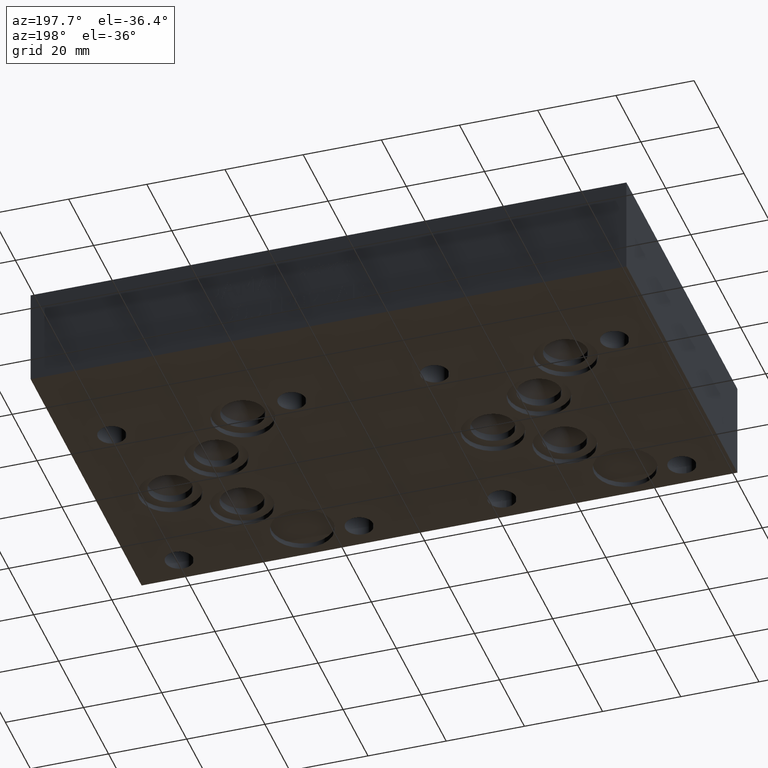
[diagram: clean part render]
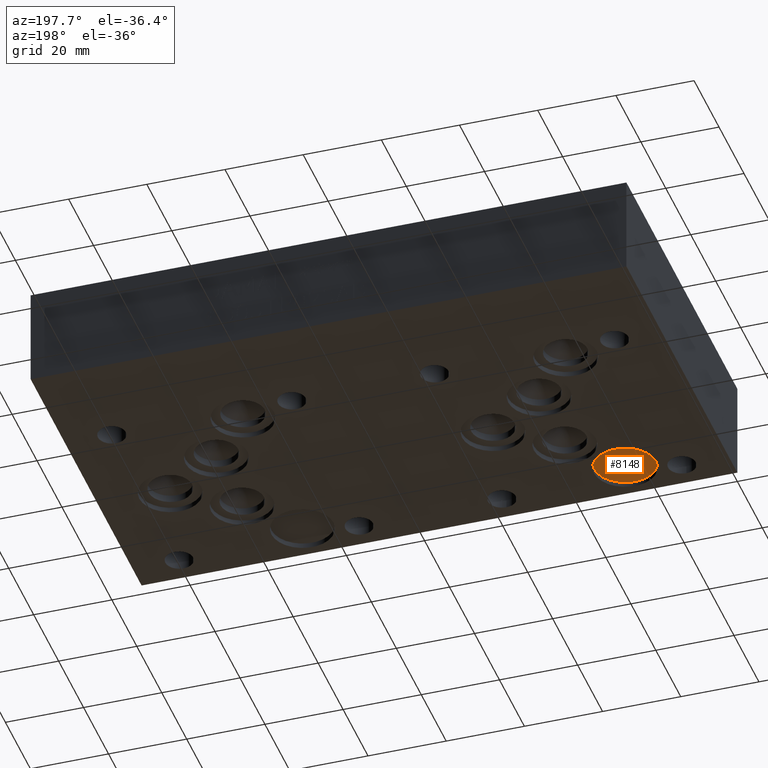
[diagram: same view with one face highlighted and labeled with its STEP entity id]
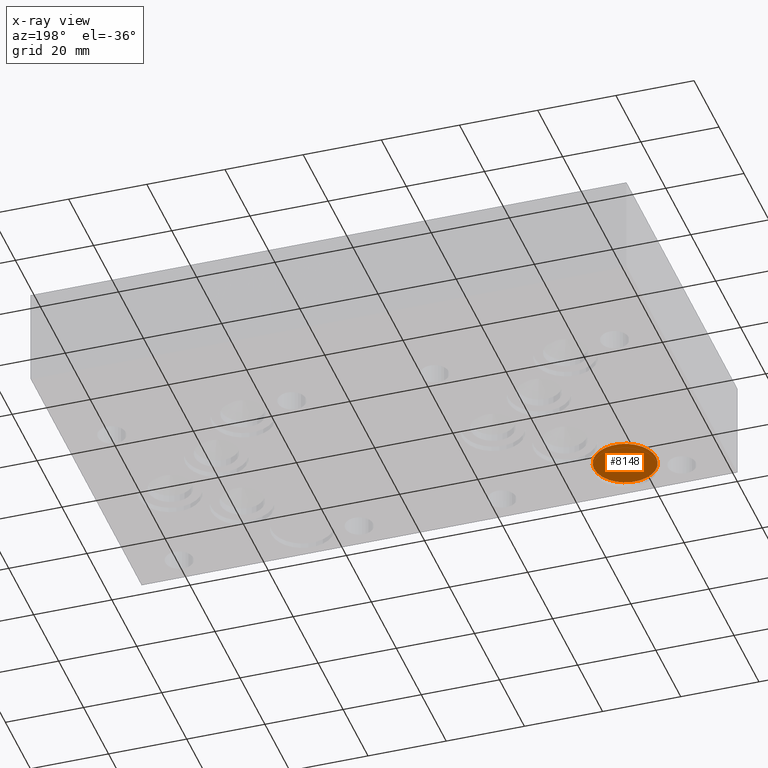
[diagram: x-ray of the same camera — body ghosted, the highlighted face saturated]
A machine part, auxiliary view. The second image highlights one B-rep face of the part: STEP entity #8148.
The next image is the same camera in x-ray: the body ghosted, the highlighted face saturated — about 0% of this face is hidden behind the body in this view.
In plain terms, the highlighted planar face has unit normal (0, 0, -1).
Its self-contained STEP definition (entity closure, byte-faithful):
#79=CIRCLE('',#8507,7.9375);
#491=PLANE('',#8508);
#866=FACE_OUTER_BOUND('',#1324,.T.);
#1324=EDGE_LOOP('',(#7052));
#3906=VERTEX_POINT('',#13638);
#4977=EDGE_CURVE('',#3906,#3906,#79,.T.);
#7052=ORIENTED_EDGE('',*,*,#4977,.T.);
#8148=ADVANCED_FACE('',(#866),#491,.T.);
#8507=AXIS2_PLACEMENT_3D('',#13640,#9946,#9947);
#8508=AXIS2_PLACEMENT_3D('',#13641,#9948,#9949);
#9946=DIRECTION('center_axis',(0.,0.,-1.));
#9947=DIRECTION('ref_axis',(1.,0.,0.));
#9948=DIRECTION('center_axis',(0.,0.,-1.));
#9949=DIRECTION('ref_axis',(1.,0.,0.));
#13638=CARTESIAN_POINT('',(17.4625,10.3124,1.3208));
#13640=CARTESIAN_POINT('Origin',(25.4,10.3124,1.3208));
#13641=CARTESIAN_POINT('Origin',(25.4,10.3124,1.3208));